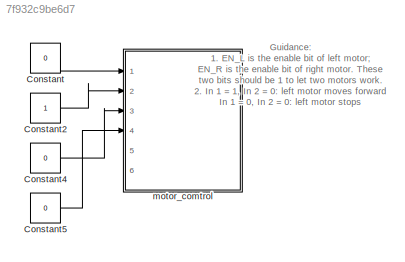
MODEL slx_7f932c9be6d7
KIND model
BLOCK [Constant] Constant
  OutDataTypeStr = boolean
  Value = 0
BLOCK [Constant] Constant2
  OutDataTypeStr = boolean
BLOCK [Constant] Constant4
  OutDataTypeStr = boolean
  Value = 0
BLOCK [Constant] Constant5
  OutDataTypeStr = boolean
  Value = 0
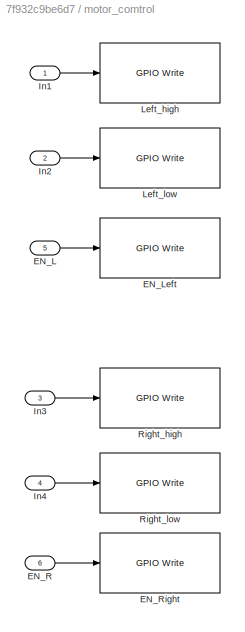
BLOCK [SubSystem] motor_comtrol
  FunctionWithSeparateData = off
  MaskHideContents = off
  MinAlgLoopOccurrences = off
  Opaque = off
  Ports = [6]
  PropExecContextOutsideSubsystem = off
  RTWSystemCode = Auto
  RequestExecContextInheritance = off
BLOCK [Inport] motor_comtrol/EN_L
  IconDisplay = Port number
  Port = 5
BLOCK [Reference] motor_comtrol/EN_Left  REF=embdlinuxlib/GPIO Write
  Ports = [1]
  SourceBlock = embdlinuxlib/GPIO Write
  SourceType = GPIO Write
  blockPlatform = Raspberry Pi
  board = Model B Rev2
  direction = Output
  gpio = 27
BLOCK [Inport] motor_comtrol/EN_R
  IconDisplay = Port number
  Port = 6
BLOCK [Reference] motor_comtrol/EN_Right  REF=embdlinuxlib/GPIO Write
  Ports = [1]
  SourceBlock = embdlinuxlib/GPIO Write
  SourceType = GPIO Write
  blockPlatform = Raspberry Pi
  board = Model B Rev2
  direction = Output
  gpio = 22
BLOCK [Inport] motor_comtrol/In1
  IconDisplay = Port number
BLOCK [Inport] motor_comtrol/In2
  IconDisplay = Port number
  Port = 2
BLOCK [Inport] motor_comtrol/In3
  IconDisplay = Port number
  Port = 3
BLOCK [Inport] motor_comtrol/In4
  IconDisplay = Port number
  Port = 4
BLOCK [Reference] motor_comtrol/Left_high  REF=embdlinuxlib/GPIO Write
  Ports = [1]
  SourceBlock = embdlinuxlib/GPIO Write
  SourceType = GPIO Write
  blockPlatform = Raspberry Pi
  board = Model B Rev2
  direction = Output
  gpio = 4
BLOCK [Reference] motor_comtrol/Left_low  REF=embdlinuxlib/GPIO Write
  Ports = [1]
  SourceBlock = embdlinuxlib/GPIO Write
  SourceType = GPIO Write
  blockPlatform = Raspberry Pi
  board = Model B Rev2
  direction = Output
  gpio = 17
BLOCK [Reference] motor_comtrol/Right_high  REF=embdlinuxlib/GPIO Write
  Ports = [1]
  SourceBlock = embdlinuxlib/GPIO Write
  SourceType = GPIO Write
  blockPlatform = Raspberry Pi
  board = Model B Rev2
  direction = Output
  gpio = 23
BLOCK [Reference] motor_comtrol/Right_low  REF=embdlinuxlib/GPIO Write
  Ports = [1]
  SourceBlock = embdlinuxlib/GPIO Write
  SourceType = GPIO Write
  blockPlatform = Raspberry Pi
  board = Model B Rev2
  direction = Output
  gpio = 24
ANNOTATION (root): Guidance: 1. EN_L is the enable bit of left motor; EN_R is the enable bit of right motor. These two bits should be 1 to let two motors work. 2. In 1 = 1, In 2 = 0: left motor moves forward In 1 = 0, In 2 = 0: left motor stops In 1 = 0, In 2 = 1: left motor moves backward For right motor is the same thing. 3. Note that all the inputs type should be boolean.
LINE Constant2:1 -> motor_comtrol:2
LINE Constant4:1 -> motor_comtrol:3
LINE Constant5:1 -> motor_comtrol:4
LINE Constant:1 -> motor_comtrol:1
LINE motor_comtrol/EN_L:1 -> motor_comtrol/EN_Left:1
LINE motor_comtrol/EN_R:1 -> motor_comtrol/EN_Right:1
LINE motor_comtrol/In1:1 -> motor_comtrol/Left_high:1
LINE motor_comtrol/In2:1 -> motor_comtrol/Left_low:1
LINE motor_comtrol/In3:1 -> motor_comtrol/Right_high:1
LINE motor_comtrol/In4:1 -> motor_comtrol/Right_low:1
